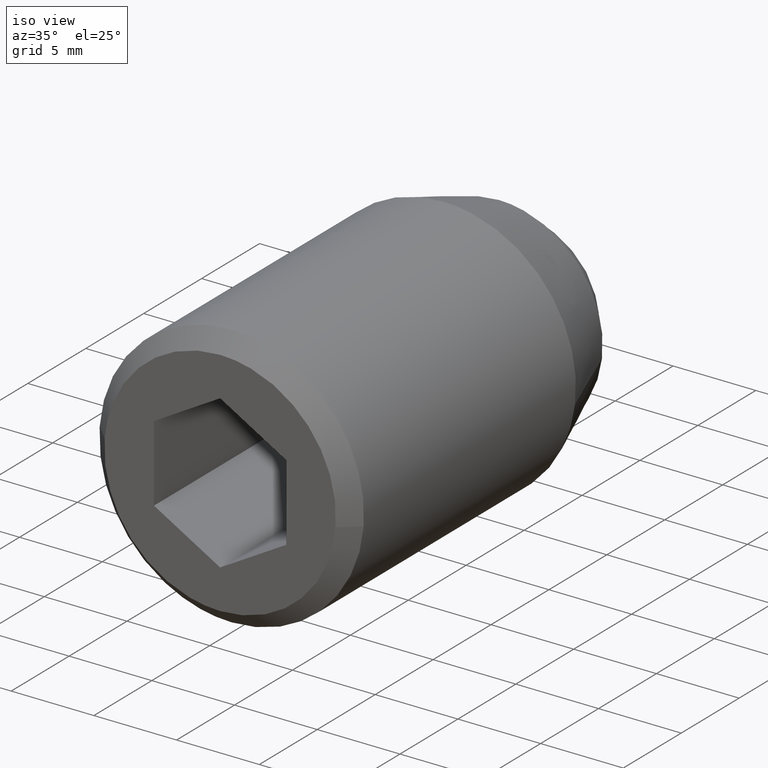
[diagram: clean part render]
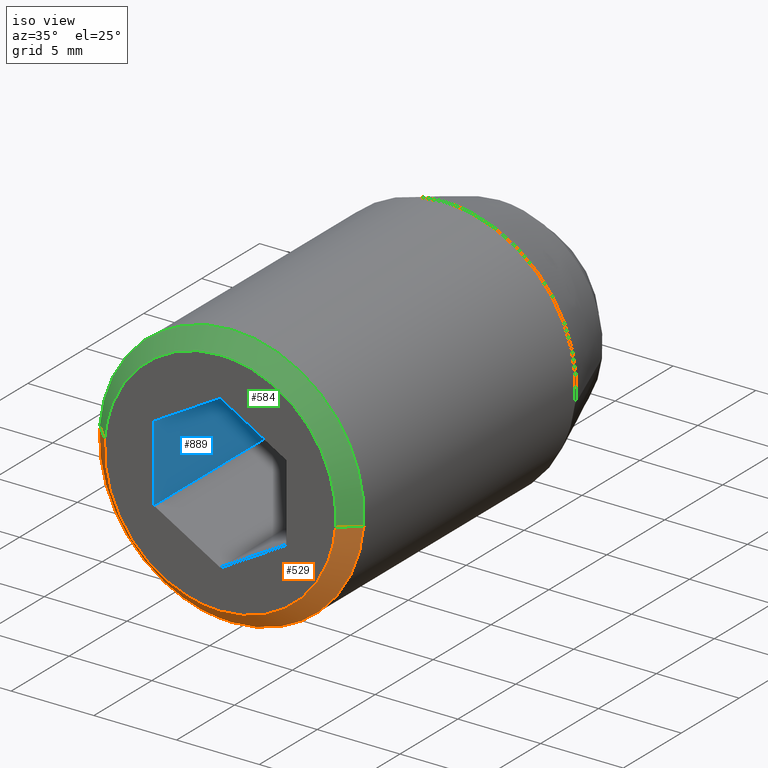
[diagram: same view with three faces highlighted in distinct colors, each labeled with its STEP entity id]
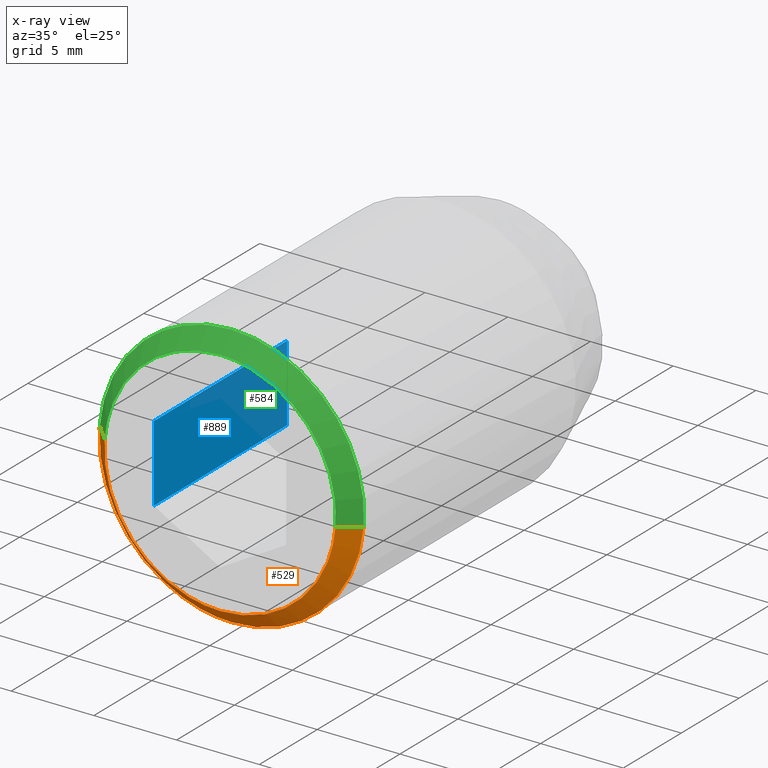
[diagram: x-ray of the same camera — body ghosted, the three highlighted faces saturated]
A machine part, iso view with three faces highlighted in distinct colors.
The next image is the same camera in x-ray (body ghosted, the three faces saturated) — at least one of them is partly hidden behind the body in this view.
Their STEP definitions:

[orange] entity #529 — the highlighted face is a freeform B-spline surface patch.
#256=CARTESIAN_POINT('',(-1.874585919961489,-23.100000000000001,-7.777269934152516));
#257=VERTEX_POINT('',#256);
#258=CARTESIAN_POINT('',(0.0,-23.100000000000001,-8.000000000000002));
#259=VERTEX_POINT('',#258);
#260=CARTESIAN_POINT('',(-1.874585919961489,-23.099999999999998,-7.777269934152516));
#261=CARTESIAN_POINT('',(-0.950524864078650,-23.099999999999998,-8.000000000000002));
#262=CARTESIAN_POINT('',(0.0,-23.100000000000001,-8.000000000000002));
#270=(BOUNDED_CURVE()B_SPLINE_CURVE(2,(#260,#261,#262),.UNSPECIFIED.,.F.,.U.)B_SPLINE_CURVE_WITH_KNOTS((3,3),(0.959962772534174,1.0),.UNSPECIFIED.)CURVE()GEOMETRIC_REPRESENTATION_ITEM()RATIONAL_B_SPLINE_CURVE((0.921210999794980,0.953093470300672,1.0))REPRESENTATION_ITEM(''));
#271=EDGE_CURVE('',#257,#259,#270,.T.);
#342=CARTESIAN_POINT('',(-7.985078428014912,-23.099999999999980,0.488387651820195));
#343=VERTEX_POINT('',#342);
#349=CARTESIAN_POINT('',(-7.975338669866865,-23.099999999995362,0.627672765858349));
#350=VERTEX_POINT('',#349);
#351=CARTESIAN_POINT('',(-7.975338669866865,-23.099999999995358,0.627672765858349));
#352=CARTESIAN_POINT('',(-7.980816339340284,-23.099999999999998,0.558072376000874));
#353=CARTESIAN_POINT('',(-7.985078428014912,-23.099999999999984,0.488387651820195));
#361=(BOUNDED_CURVE()B_SPLINE_CURVE(2,(#351,#352,#353),.UNSPECIFIED.,.F.,.U.)B_SPLINE_CURVE_WITH_KNOTS((3,3),(0.736331300631253,0.739332990958082),.UNSPECIFIED.)CURVE()GEOMETRIC_REPRESENTATION_ITEM()RATIONAL_B_SPLINE_CURVE((0.969723356168655,0.972855505527897,0.976072103217307))REPRESENTATION_ITEM(''));
#362=EDGE_CURVE('',#350,#343,#361,.T.);
#379=CARTESIAN_POINT('',(7.975338669866865,-23.099999999995362,-0.627672765858352));
#380=VERTEX_POINT('',#379);
#396=CARTESIAN_POINT('',(0.0,-23.100000000000001,-8.000000000000002));
#397=CARTESIAN_POINT('',(7.395123933200135,-23.099999999999994,-8.000000000000002));
#398=CARTESIAN_POINT('',(7.975338669866865,-23.099999999995365,-0.627672765858352));
#406=(BOUNDED_CURVE()B_SPLINE_CURVE(2,(#396,#397,#398),.UNSPECIFIED.,.F.,.U.)B_SPLINE_CURVE_WITH_KNOTS((3,3),(0.0,0.236331300631253),.UNSPECIFIED.)CURVE()GEOMETRIC_REPRESENTATION_ITEM()RATIONAL_B_SPLINE_CURVE((1.0,0.723120658606971,0.969723356168656))REPRESENTATION_ITEM(''));
#407=EDGE_CURVE('',#259,#380,#406,.T.);
#426=CARTESIAN_POINT('',(-7.985078428014913,-23.099999999999987,0.488387651820195));
#427=CARTESIAN_POINT('',(-8.0,-23.100000000000005,0.244421440066978));
#428=CARTESIAN_POINT('',(-8.0,-23.100000000000001,-1.291960E-015));
#429=CARTESIAN_POINT('',(-8.0,-23.100000000000001,-6.300837318904661));
#430=CARTESIAN_POINT('',(-1.874585919961489,-23.099999999999998,-7.777269934152516));
#438=(BOUNDED_CURVE()B_SPLINE_CURVE(2,(#426,#427,#428,#429,#430),.UNSPECIFIED.,.F.,.U.)B_SPLINE_CURVE_WITH_KNOTS((3,2,3),(0.739332990958083,0.750000000000000,0.959962772534174),.UNSPECIFIED.)CURVE()GEOMETRIC_REPRESENTATION_ITEM()RATIONAL_B_SPLINE_CURVE((0.976072103217309,0.987502821546402,1.0,0.754013310885876,0.921210999794980))REPRESENTATION_ITEM(''));
#439=EDGE_CURVE('',#343,#257,#438,.T.);
#461=CARTESIAN_POINT('',(6.953498402788561,-24.125000000000000,-0.547252192701724));
#462=CARTESIAN_POINT('',(6.406246210086838,-24.124999999999996,-7.500750595490285));
#463=CARTESIAN_POINT('',(-0.547252192701722,-24.125000000000000,-6.953498402788561));
#464=CARTESIAN_POINT('',(-7.500750595490283,-24.124999999999996,-6.406246210086841));
#465=CARTESIAN_POINT('',(-6.953498402788561,-24.125000000000000,0.547252192701721));
#466=CARTESIAN_POINT('',(8.000884676541926,-23.074374999999989,-0.629683280150791));
#467=CARTESIAN_POINT('',(7.371201396391136,-23.074374999999996,-8.630567956692717));
#468=CARTESIAN_POINT('',(-0.629683280150790,-23.074374999999989,-8.000884676541928));
#469=CARTESIAN_POINT('',(-8.630567956692715,-23.074374999999996,-7.371201396391138));
#470=CARTESIAN_POINT('',(-8.000884676541926,-23.074374999999989,0.629683280150789));
#478=(BOUNDED_SURFACE()B_SPLINE_SURFACE(2,1,((#461,#466),(#462,#467),(#463,#468),(#464,#469),(#465,#470)),.UNSPECIFIED.,.F.,.F.,.U.)B_SPLINE_SURFACE_WITH_KNOTS((3,2,3),(2,2),(0.0,13.297290886082269,26.594581772164549),(0.0,1.0),.UNSPECIFIED.)GEOMETRIC_REPRESENTATION_ITEM()RATIONAL_B_SPLINE_SURFACE(((1.0,1.0),(0.707106781186548,0.707106781186548),(1.0,1.0),(0.707106781186548,0.707106781186548),(1.0,1.0)))REPRESENTATION_ITEM('')SURFACE());
#479=ORIENTED_EDGE('',*,*,#407,.T.);
#480=CARTESIAN_POINT('',(6.978421336133135,-24.099999999996900,-0.549213670118743));
#481=VERTEX_POINT('',#480);
#482=CARTESIAN_POINT('',(6.978421336133135,-24.099999999996900,-0.549213670118743));
#483=CARTESIAN_POINT('',(7.975338669866865,-23.099999999995362,-0.627672765858352));
#484=QUASI_UNIFORM_CURVE('',1,(#482,#483),.UNSPECIFIED.,.F.,.U.);
#485=EDGE_CURVE('',#481,#380,#484,.T.);
#486=ORIENTED_EDGE('',*,*,#485,.F.);
#487=CARTESIAN_POINT('',(0.0,-24.100000000000001,-7.000000000000001));
#488=VERTEX_POINT('',#487);
#489=CARTESIAN_POINT('',(0.0,-24.100000000000001,-7.000000000000001));
#490=CARTESIAN_POINT('',(6.470733441563578,-24.099999999999994,-7.000000000000003));
#491=CARTESIAN_POINT('',(6.978421336133135,-24.099999999996900,-0.549213670118743));
#499=(BOUNDED_CURVE()B_SPLINE_CURVE(2,(#489,#490,#491),.UNSPECIFIED.,.F.,.U.)B_SPLINE_CURVE_WITH_KNOTS((3,3),(0.0,0.236331300631608),.UNSPECIFIED.)CURVE()GEOMETRIC_REPRESENTATION_ITEM()RATIONAL_B_SPLINE_CURVE((1.0,0.723120658606554,0.969723356169397))REPRESENTATION_ITEM(''));
#500=EDGE_CURVE('',#488,#481,#499,.T.);
#501=ORIENTED_EDGE('',*,*,#500,.F.);
#502=CARTESIAN_POINT('',(-6.978421336133133,-24.099999999996900,0.549213670118740));
#503=VERTEX_POINT('',#502);
#504=CARTESIAN_POINT('',(-6.978421336133134,-24.099999999996893,0.549213670118740));
#505=CARTESIAN_POINT('',(-7.0,-24.099999999999998,0.275030749077377));
#506=CARTESIAN_POINT('',(-7.0,-24.100000000000001,-1.291960E-015));
#507=CARTESIAN_POINT('',(-6.999999999999999,-24.099999999999994,-7.000000000000002));
#508=CARTESIAN_POINT('',(0.0,-24.100000000000001,-7.000000000000001));
#516=(BOUNDED_CURVE()B_SPLINE_CURVE(2,(#504,#505,#506,#507,#508),.UNSPECIFIED.,.F.,.U.)B_SPLINE_CURVE_WITH_KNOTS((3,2,3),(0.736331300631608,0.750000000000000,1.0),.UNSPECIFIED.)CURVE()GEOMETRIC_REPRESENTATION_ITEM()RATIONAL_B_SPLINE_CURVE((0.969723356169398,0.983986122579993,1.0,0.707106781186547,1.0))REPRESENTATION_ITEM(''));
#517=EDGE_CURVE('',#503,#488,#516,.T.);
#518=ORIENTED_EDGE('',*,*,#517,.F.);
#519=CARTESIAN_POINT('',(-6.978421336133133,-24.099999999996900,0.549213670118740));
#520=CARTESIAN_POINT('',(-7.975338669866865,-23.099999999995362,0.627672765858349));
#521=QUASI_UNIFORM_CURVE('',1,(#519,#520),.UNSPECIFIED.,.F.,.U.);
#522=EDGE_CURVE('',#503,#350,#521,.T.);
#523=ORIENTED_EDGE('',*,*,#522,.T.);
#524=ORIENTED_EDGE('',*,*,#362,.T.);
#525=ORIENTED_EDGE('',*,*,#439,.T.);
#526=ORIENTED_EDGE('',*,*,#271,.T.);
#527=EDGE_LOOP('',(#479,#486,#501,#518,#523,#524,#525,#526));
#528=FACE_OUTER_BOUND('',#527,.T.);
#529=ADVANCED_FACE('',(#528),#478,.T.);

[blue] entity #889 — the highlighted face is a freeform B-spline surface patch.
#731=CARTESIAN_POINT('',(-4.0,-12.600000000000000,2.309401000000000));
#732=VERTEX_POINT('',#731);
#738=CARTESIAN_POINT('',(-4.0,-12.600000000000000,-2.309401000000000));
#739=VERTEX_POINT('',#738);
#740=CARTESIAN_POINT('',(-4.0,-12.600000000000000,2.309401000000000));
#741=CARTESIAN_POINT('',(-4.0,-12.600000000000000,-2.309401000000000));
#742=QUASI_UNIFORM_CURVE('',1,(#740,#741),.UNSPECIFIED.,.F.,.U.);
#743=EDGE_CURVE('',#732,#739,#742,.T.);
#851=CARTESIAN_POINT('',(-4.0,-24.100000000000001,-2.309401000000000));
#852=VERTEX_POINT('',#851);
#860=CARTESIAN_POINT('',(-4.0,-12.600000000000000,-2.309401000000000));
#861=CARTESIAN_POINT('',(-4.0,-24.100000000000001,-2.309401000000000));
#862=QUASI_UNIFORM_CURVE('',1,(#860,#861),.UNSPECIFIED.,.F.,.U.);
#863=EDGE_CURVE('',#739,#852,#862,.T.);
#868=CARTESIAN_POINT('',(-4.0,-24.674425368439781,-2.540110194305875));
#869=CARTESIAN_POINT('',(-4.0,-24.674425368439781,2.540110276896491));
#870=CARTESIAN_POINT('',(-4.0,-12.025575556922330,-2.540110194305875));
#871=CARTESIAN_POINT('',(-4.0,-12.025575556922330,2.540110276896491));
#872=B_SPLINE_SURFACE_WITH_KNOTS('',1,1,((#868,#870),(#869,#871)),.UNSPECIFIED.,.F.,.F.,.U.,(2,2),(2,2),(0.0,5.080220471202366),(0.0,12.648849811517451),.UNSPECIFIED.);
#873=CARTESIAN_POINT('',(-4.0,-24.100000000000001,2.309401000000000));
#874=VERTEX_POINT('',#873);
#875=CARTESIAN_POINT('',(-4.0,-24.100000000000001,2.309401000000000));
#876=CARTESIAN_POINT('',(-4.0,-24.100000000000001,-2.309401000000000));
#877=QUASI_UNIFORM_CURVE('',1,(#875,#876),.UNSPECIFIED.,.F.,.U.);
#878=EDGE_CURVE('',#874,#852,#877,.T.);
#879=ORIENTED_EDGE('',*,*,#878,.T.);
#880=ORIENTED_EDGE('',*,*,#863,.F.);
#881=ORIENTED_EDGE('',*,*,#743,.F.);
#882=CARTESIAN_POINT('',(-4.0,-12.600000000000000,2.309401000000000));
#883=CARTESIAN_POINT('',(-4.0,-24.100000000000001,2.309401000000000));
#884=QUASI_UNIFORM_CURVE('',1,(#882,#883),.UNSPECIFIED.,.F.,.U.);
#885=EDGE_CURVE('',#732,#874,#884,.T.);
#886=ORIENTED_EDGE('',*,*,#885,.T.);
#887=EDGE_LOOP('',(#879,#880,#881,#886));
#888=FACE_OUTER_BOUND('',#887,.T.);
#889=ADVANCED_FACE('',(#888),#872,.F.);

[green] entity #584 — the highlighted face is a freeform B-spline surface patch.
#349=CARTESIAN_POINT('',(-7.975338669866865,-23.099999999995362,0.627672765858349));
#350=VERTEX_POINT('',#349);
#364=CARTESIAN_POINT('',(0.0,-23.100000000000001,7.999999999999998));
#365=VERTEX_POINT('',#364);
#366=CARTESIAN_POINT('',(0.0,-23.100000000000001,7.999999999999998));
#367=CARTESIAN_POINT('',(-7.395123933200092,-23.099999999999998,7.999999999999999));
#368=CARTESIAN_POINT('',(-7.975338669866865,-23.099999999995358,0.627672765858349));
#376=(BOUNDED_CURVE()B_SPLINE_CURVE(2,(#366,#367,#368),.UNSPECIFIED.,.F.,.U.)B_SPLINE_CURVE_WITH_KNOTS((3,3),(0.500000000000000,0.736331300631252),.UNSPECIFIED.)CURVE()GEOMETRIC_REPRESENTATION_ITEM()RATIONAL_B_SPLINE_CURVE((1.0,0.723120658606972,0.969723356168653))REPRESENTATION_ITEM(''));
#377=EDGE_CURVE('',#365,#350,#376,.T.);
#379=CARTESIAN_POINT('',(7.975338669866865,-23.099999999995362,-0.627672765858352));
#380=VERTEX_POINT('',#379);
#381=CARTESIAN_POINT('',(7.975338669866865,-23.099999999995365,-0.627672765858352));
#382=CARTESIAN_POINT('',(8.0,-23.099999999999998,-0.314320856096747));
#383=CARTESIAN_POINT('',(8.0,-23.100000000000001,-1.291960E-015));
#384=CARTESIAN_POINT('',(8.0,-23.100000000000001,7.999999999999999));
#385=CARTESIAN_POINT('',(0.0,-23.100000000000001,7.999999999999998));
#393=(BOUNDED_CURVE()B_SPLINE_CURVE(2,(#381,#382,#383,#384,#385),.UNSPECIFIED.,.F.,.U.)B_SPLINE_CURVE_WITH_KNOTS((3,2,3),(0.236331300631253,0.250000000000000,0.500000000000000),.UNSPECIFIED.)CURVE()GEOMETRIC_REPRESENTATION_ITEM()RATIONAL_B_SPLINE_CURVE((0.969723356168655,0.983986122579577,1.0,0.707106781186548,1.0))REPRESENTATION_ITEM(''));
#394=EDGE_CURVE('',#380,#365,#393,.T.);
#480=CARTESIAN_POINT('',(6.978421336133135,-24.099999999996900,-0.549213670118743));
#481=VERTEX_POINT('',#480);
#482=CARTESIAN_POINT('',(6.978421336133135,-24.099999999996900,-0.549213670118743));
#483=CARTESIAN_POINT('',(7.975338669866865,-23.099999999995362,-0.627672765858352));
#484=QUASI_UNIFORM_CURVE('',1,(#482,#483),.UNSPECIFIED.,.F.,.U.);
#485=EDGE_CURVE('',#481,#380,#484,.T.);
#502=CARTESIAN_POINT('',(-6.978421336133133,-24.099999999996900,0.549213670118740));
#503=VERTEX_POINT('',#502);
#519=CARTESIAN_POINT('',(-6.978421336133133,-24.099999999996900,0.549213670118740));
#520=CARTESIAN_POINT('',(-7.975338669866865,-23.099999999995362,0.627672765858349));
#521=QUASI_UNIFORM_CURVE('',1,(#519,#520),.UNSPECIFIED.,.F.,.U.);
#522=EDGE_CURVE('',#503,#350,#521,.T.);
#530=CARTESIAN_POINT('',(-6.953498402788561,-24.125000000000000,0.547252192701721));
#531=CARTESIAN_POINT('',(-6.406246210086838,-24.124999999999996,7.500750595490281));
#532=CARTESIAN_POINT('',(0.547252192701722,-24.125000000000000,6.953498402788560));
#533=CARTESIAN_POINT('',(7.500750595490283,-24.124999999999996,6.406246210086837));
#534=CARTESIAN_POINT('',(6.953498402788561,-24.125000000000000,-0.547252192701724));
#535=CARTESIAN_POINT('',(-8.000884676541926,-23.074374999999989,0.629683280150789));
#536=CARTESIAN_POINT('',(-7.371201396391136,-23.074374999999996,8.630567956692714));
#537=CARTESIAN_POINT('',(0.629683280150790,-23.074374999999989,8.000884676541924));
#538=CARTESIAN_POINT('',(8.630567956692715,-23.074374999999996,7.371201396391133));
#539=CARTESIAN_POINT('',(8.000884676541926,-23.074374999999989,-0.629683280150791));
#547=(BOUNDED_SURFACE()B_SPLINE_SURFACE(2,1,((#530,#535),(#531,#536),(#532,#537),(#533,#538),(#534,#539)),.UNSPECIFIED.,.F.,.F.,.U.)B_SPLINE_SURFACE_WITH_KNOTS((3,2,3),(2,2),(0.0,13.297290886082269,26.594581772164538),(0.0,1.0),.UNSPECIFIED.)GEOMETRIC_REPRESENTATION_ITEM()RATIONAL_B_SPLINE_SURFACE(((1.0,1.0),(0.707106781186548,0.707106781186548),(1.0,1.0),(0.707106781186548,0.707106781186548),(1.0,1.0)))REPRESENTATION_ITEM('')SURFACE());
#548=ORIENTED_EDGE('',*,*,#394,.T.);
#549=ORIENTED_EDGE('',*,*,#377,.T.);
#550=ORIENTED_EDGE('',*,*,#522,.F.);
#551=CARTESIAN_POINT('',(0.0,-24.100000000000001,6.999999999999999));
#552=VERTEX_POINT('',#551);
#553=CARTESIAN_POINT('',(0.0,-24.100000000000001,6.999999999999999));
#554=CARTESIAN_POINT('',(-6.470733441563616,-24.100000000000009,7.000000000000001));
#555=CARTESIAN_POINT('',(-6.978421336133133,-24.099999999996896,0.549213670118740));
#563=(BOUNDED_CURVE()B_SPLINE_CURVE(2,(#553,#554,#555),.UNSPECIFIED.,.F.,.U.)B_SPLINE_CURVE_WITH_KNOTS((3,3),(0.500000000000000,0.736331300631609),.UNSPECIFIED.)CURVE()GEOMETRIC_REPRESENTATION_ITEM()RATIONAL_B_SPLINE_CURVE((1.0,0.723120658606553,0.969723356169400))REPRESENTATION_ITEM(''));
#564=EDGE_CURVE('',#552,#503,#563,.T.);
#565=ORIENTED_EDGE('',*,*,#564,.F.);
#566=CARTESIAN_POINT('',(6.978421336133135,-24.099999999996893,-0.549213670118743));
#567=CARTESIAN_POINT('',(7.0,-24.099999999999998,-0.275030749077380));
#568=CARTESIAN_POINT('',(7.0,-24.100000000000001,-1.291960E-015));
#569=CARTESIAN_POINT('',(6.999999999999999,-24.099999999999994,6.999999999999999));
#570=CARTESIAN_POINT('',(0.0,-24.100000000000001,6.999999999999999));
#578=(BOUNDED_CURVE()B_SPLINE_CURVE(2,(#566,#567,#568,#569,#570),.UNSPECIFIED.,.F.,.U.)B_SPLINE_CURVE_WITH_KNOTS((3,2,3),(0.236331300631608,0.250000000000000,0.500000000000000),.UNSPECIFIED.)CURVE()GEOMETRIC_REPRESENTATION_ITEM()RATIONAL_B_SPLINE_CURVE((0.969723356169398,0.983986122579993,1.0,0.707106781186547,1.0))REPRESENTATION_ITEM(''));
#579=EDGE_CURVE('',#481,#552,#578,.T.);
#580=ORIENTED_EDGE('',*,*,#579,.F.);
#581=ORIENTED_EDGE('',*,*,#485,.T.);
#582=EDGE_LOOP('',(#548,#549,#550,#565,#580,#581));
#583=FACE_OUTER_BOUND('',#582,.T.);
#584=ADVANCED_FACE('',(#583),#547,.T.);